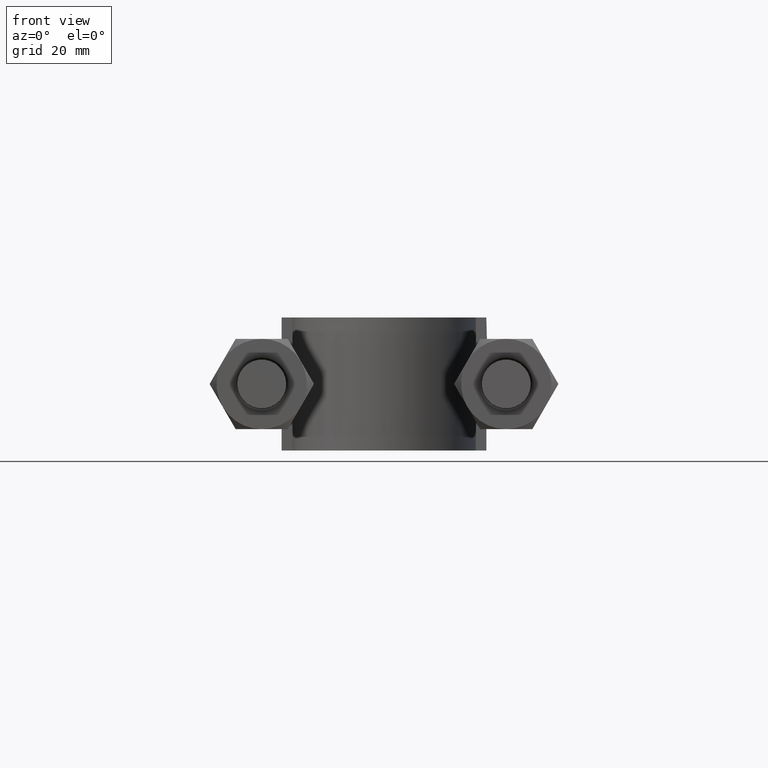
[diagram: clean part render]
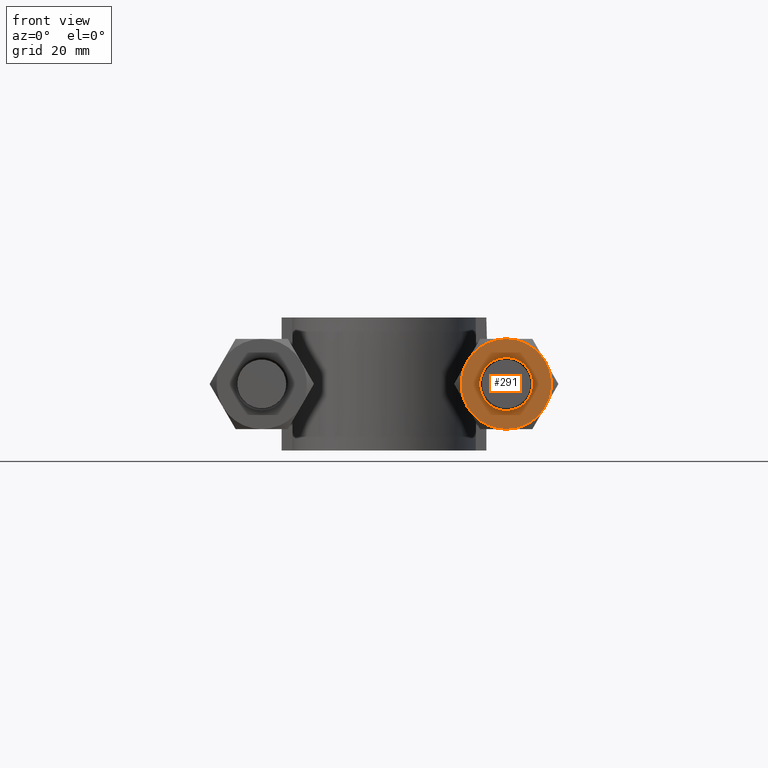
[diagram: same view with one face highlighted and labeled with its STEP entity id]
A machine part, front view. The second image highlights one B-rep face of the part: STEP entity #291.
In plain terms, the highlighted planar face has unit normal (0, 1, 0).
Its self-contained STEP definition (entity closure, byte-faithful):
#291 = ADVANCED_FACE( '', ( #458, #459 ), #460, .F. );
#458 = FACE_OUTER_BOUND( '', #1455, .T. );
#459 = FACE_BOUND( '', #1456, .T. );
#460 = PLANE( '', #1457 );
#1455 = EDGE_LOOP( '', ( #1973, #1974, #1975, #1976, #1977, #1978 ) );
#1456 = EDGE_LOOP( '', ( #1979 ) );
#1457 = AXIS2_PLACEMENT_3D( '', #1980, #1981, #1982 );
#1973 = ORIENTED_EDGE( '', *, *, #2143, .F. );
#1974 = ORIENTED_EDGE( '', *, *, #2111, .F. );
#1975 = ORIENTED_EDGE( '', *, *, #2107, .F. );
#1976 = ORIENTED_EDGE( '', *, *, #2140, .F. );
#1977 = ORIENTED_EDGE( '', *, *, #2105, .F. );
#1978 = ORIENTED_EDGE( '', *, *, #2152, .F. );
#1979 = ORIENTED_EDGE( '', *, *, #2153, .T. );
#1980 = CARTESIAN_POINT( '', ( 23.0000000000000, 20.0000000000000, 6.58164928807326E-015 ) );
#1981 = DIRECTION( '', ( 2.29561756065154E-047, 1.00000000000000, 3.06151588455594E-016 ) );
#1982 = DIRECTION( '', ( 1.00000000000000, 0.000000000000000, -7.49830360911067E-032 ) );
#2105 = EDGE_CURVE( '', #2322, #2324, #2325, .T. );
#2107 = EDGE_CURVE( '', #2327, #2328, #2329, .T. );
#2111 = EDGE_CURVE( '', #2328, #2335, #2336, .T. );
#2140 = EDGE_CURVE( '', #2324, #2327, #2385, .T. );
#2143 = EDGE_CURVE( '', #2335, #2358, #2389, .T. );
#2152 = EDGE_CURVE( '', #2358, #2322, #2401, .T. );
#2153 = EDGE_CURVE( '', #2402, #2402, #2403, .T. );
#2322 = VERTEX_POINT( '', #2840 );
#2324 = VERTEX_POINT( '', #2847 );
#2325 = CIRCLE( '', #2848, 8.50000000000000 );
#2327 = VERTEX_POINT( '', #2855 );
#2328 = VERTEX_POINT( '', #2856 );
#2329 = CIRCLE( '', #2857, 8.50000000000000 );
#2335 = VERTEX_POINT( '', #2873 );
#2336 = CIRCLE( '', #2874, 8.50000000000000 );
#2358 = VERTEX_POINT( '', #2912 );
#2385 = CIRCLE( '', #2962, 8.50000000000000 );
#2389 = CIRCLE( '', #2971, 8.50000000000000 );
#2401 = CIRCLE( '', #2992, 8.50000000000000 );
#2402 = VERTEX_POINT( '', #2993 );
#2403 = CIRCLE( '', #2994, 5.00000000000000 );
#2840 = CARTESIAN_POINT( '', ( 30.3612159321677, 20.0000000000000, 4.25000000000001 ) );
#2847 = CARTESIAN_POINT( '', ( 30.3612159321677, 20.0000000000000, -4.25000000000002 ) );
#2848 = AXIS2_PLACEMENT_3D( '', #3154, #3155, #3156 );
#2855 = CARTESIAN_POINT( '', ( 23.0000000000000, 20.0000000000000, -8.49999999999999 ) );
#2856 = CARTESIAN_POINT( '', ( 15.6387840678323, 20.0000000000000, -4.24999999999999 ) );
#2857 = AXIS2_PLACEMENT_3D( '', #3157, #3158, #3159 );
#2873 = CARTESIAN_POINT( '', ( 15.6387840678323, 20.0000000000000, 4.25000000000001 ) );
#2874 = AXIS2_PLACEMENT_3D( '', #3163, #3164, #3165 );
#2912 = CARTESIAN_POINT( '', ( 23.0000000000000, 20.0000000000000, 8.50000000000001 ) );
#2962 = AXIS2_PLACEMENT_3D( '', #3207, #3208, #3209 );
#2971 = AXIS2_PLACEMENT_3D( '', #3213, #3214, #3215 );
#2992 = AXIS2_PLACEMENT_3D( '', #3229, #3230, #3231 );
#2993 = CARTESIAN_POINT( '', ( 23.0000000000000, 20.0000000000000, 5.00000000000001 ) );
#2994 = AXIS2_PLACEMENT_3D( '', #3232, #3233, #3234 );
#3154 = CARTESIAN_POINT( '', ( 23.0000000000000, 20.0000000000000, 6.58164928807326E-015 ) );
#3155 = DIRECTION( '', ( 2.29561756065154E-047, 1.00000000000000, 3.06151588455594E-016 ) );
#3156 = DIRECTION( '', ( 0.000000000000000, -3.06151588455594E-016, 1.00000000000000 ) );
#3157 = CARTESIAN_POINT( '', ( 23.0000000000000, 20.0000000000000, 6.58164928807326E-015 ) );
#3158 = DIRECTION( '', ( 2.29561756065154E-047, 1.00000000000000, 3.06151588455594E-016 ) );
#3159 = DIRECTION( '', ( 0.000000000000000, -3.06151588455594E-016, 1.00000000000000 ) );
#3163 = CARTESIAN_POINT( '', ( 23.0000000000000, 20.0000000000000, 6.58164928807326E-015 ) );
#3164 = DIRECTION( '', ( 2.29561756065154E-047, 1.00000000000000, 3.06151588455594E-016 ) );
#3165 = DIRECTION( '', ( 0.000000000000000, -3.06151588455594E-016, 1.00000000000000 ) );
#3207 = CARTESIAN_POINT( '', ( 23.0000000000000, 20.0000000000000, 6.58164928807326E-015 ) );
#3208 = DIRECTION( '', ( 2.29561756065154E-047, 1.00000000000000, 3.06151588455594E-016 ) );
#3209 = DIRECTION( '', ( 0.000000000000000, -3.06151588455594E-016, 1.00000000000000 ) );
#3213 = CARTESIAN_POINT( '', ( 23.0000000000000, 20.0000000000000, 6.58164928807326E-015 ) );
#3214 = DIRECTION( '', ( 2.29561756065154E-047, 1.00000000000000, 3.06151588455594E-016 ) );
#3215 = DIRECTION( '', ( 0.000000000000000, -3.06151588455594E-016, 1.00000000000000 ) );
#3229 = CARTESIAN_POINT( '', ( 23.0000000000000, 20.0000000000000, 6.58164928807326E-015 ) );
#3230 = DIRECTION( '', ( 2.29561756065154E-047, 1.00000000000000, 3.06151588455594E-016 ) );
#3231 = DIRECTION( '', ( 0.000000000000000, -3.06151588455594E-016, 1.00000000000000 ) );
#3232 = CARTESIAN_POINT( '', ( 23.0000000000000, 20.0000000000000, 6.58164928807326E-015 ) );
#3233 = DIRECTION( '', ( 2.29561756065154E-047, 1.00000000000000, 3.06151588455594E-016 ) );
#3234 = DIRECTION( '', ( 0.000000000000000, -3.06151588455594E-016, 1.00000000000000 ) );